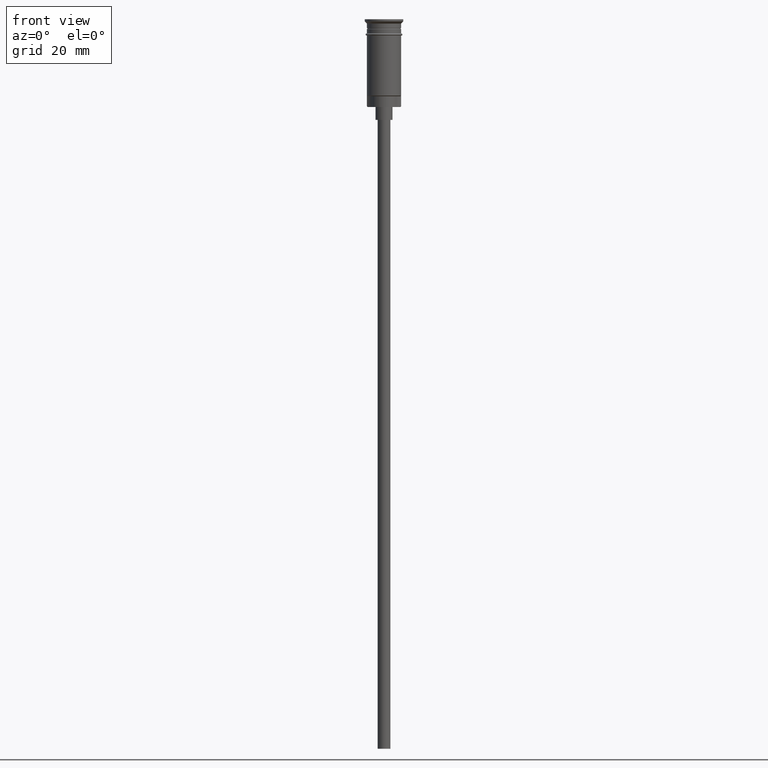
[diagram: clean part render]
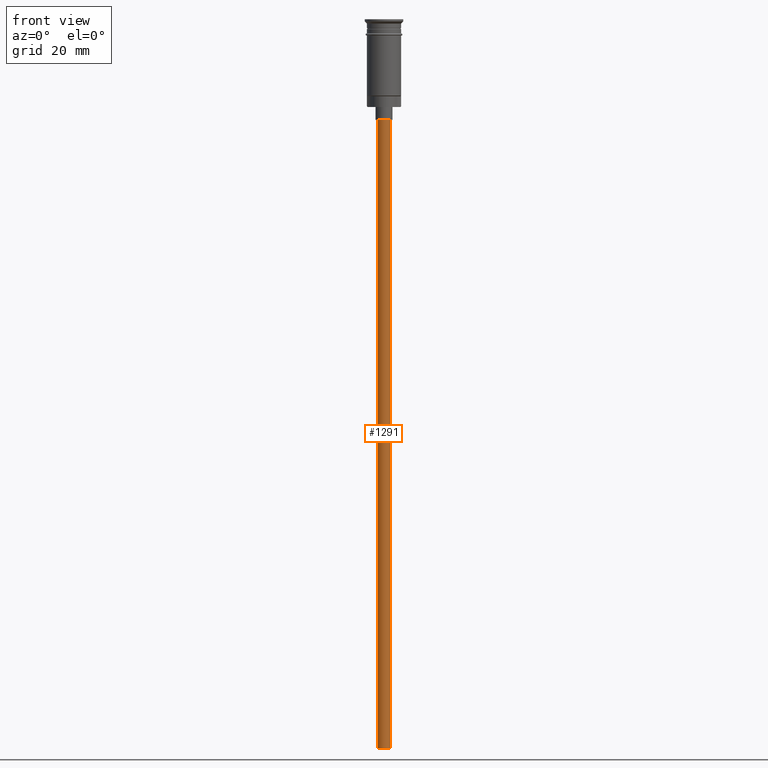
[diagram: same view with one face highlighted and labeled with its STEP entity id]
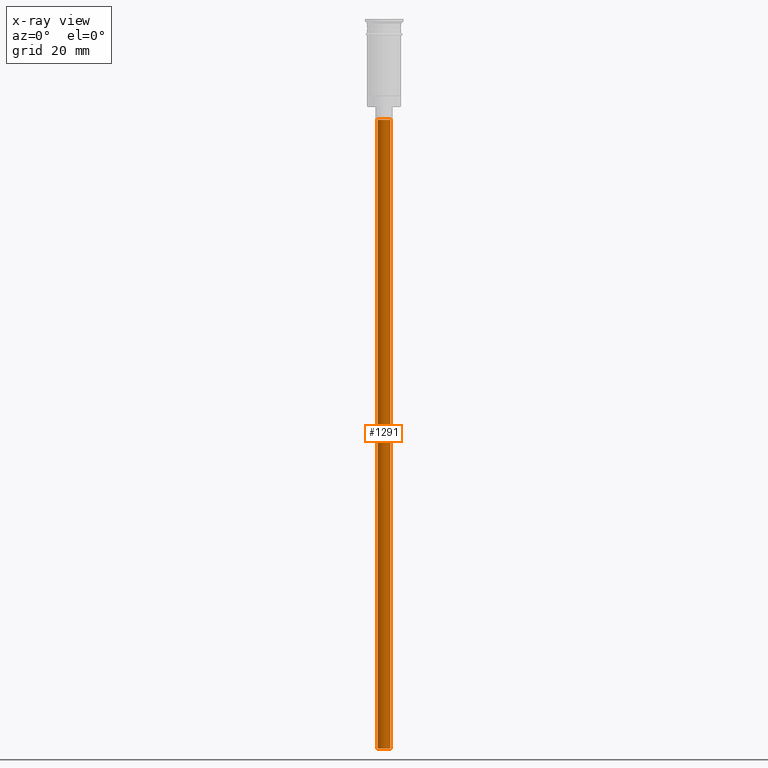
[diagram: x-ray of the same camera — body ghosted, the highlighted face saturated]
A machine part, front view. The second image highlights one B-rep face of the part: STEP entity #1291.
The next image is the same camera in x-ray: the body ghosted, the highlighted face saturated — about 0% of this face is hidden behind the body in this view.
In plain terms, the highlighted cylindrical surface (edge-blend (fillet) strip) has radius 1.5 mm, axis along (-0, -0, 1).
Its self-contained STEP definition (entity closure, byte-faithful):
#86 = CARTESIAN_POINT ( 'NONE',  ( -1.500000000000000222, 1.836970198721030181E-16, -170.4999999999999716 ) ) ;
#102 = DIRECTION ( 'NONE',  ( -1.000000000000000000, 0.000000000000000000, 0.000000000000000000 ) ) ;
#205 = ORIENTED_EDGE ( 'NONE', *, *, #1358, .F. ) ;
#211 = EDGE_CURVE ( 'NONE', #292, #383, #683, .T. ) ;
#249 = CARTESIAN_POINT ( 'NONE',  ( 0.000000000000000000, 0.000000000000000000, -170.4999999999999716 ) ) ;
#267 = VECTOR ( 'NONE', #844, 1000.000000000000000 ) ;
#288 = CARTESIAN_POINT ( 'NONE',  ( 1.500000000000000222, 0.000000000000000000, -170.4999999999999716 ) ) ;
#292 = VERTEX_POINT ( 'NONE', #1192 ) ;
#370 = DIRECTION ( 'NONE',  ( 0.000000000000000000, 0.000000000000000000, -1.000000000000000000 ) ) ;
#383 = VERTEX_POINT ( 'NONE', #775 ) ;
#387 = DIRECTION ( 'NONE',  ( 1.000000000000000000, 0.000000000000000000, 0.000000000000000000 ) ) ;
#495 = CYLINDRICAL_SURFACE ( 'NONE', #875, 1.500000000000000222 ) ;
#511 = VERTEX_POINT ( 'NONE', #973 ) ;
#575 = DIRECTION ( 'NONE',  ( -0.000000000000000000, -0.000000000000000000, 1.000000000000000000 ) ) ;
#578 = AXIS2_PLACEMENT_3D ( 'NONE', #1336, #1455, #102 ) ;
#598 = CARTESIAN_POINT ( 'NONE',  ( 1.500000000000000222, 0.000000000000000000, -170.4999999999999716 ) ) ;
#618 = EDGE_CURVE ( 'NONE', #1121, #292, #860, .T. ) ;
#634 = FACE_OUTER_BOUND ( 'NONE', #1431, .T. ) ;
#683 = CIRCLE ( 'NONE', #578, 1.500000000000000222 ) ;
#719 = LINE ( 'NONE', #86, #1448 ) ;
#775 = CARTESIAN_POINT ( 'NONE',  ( -1.500000000000000222, 1.836970198721030181E-16, -23.49999999999999645 ) ) ;
#844 = DIRECTION ( 'NONE',  ( -0.000000000000000000, -0.000000000000000000, 1.000000000000000000 ) ) ;
#860 = LINE ( 'NONE', #598, #267 ) ;
#875 = AXIS2_PLACEMENT_3D ( 'NONE', #249, #884, #387 ) ;
#884 = DIRECTION ( 'NONE',  ( -0.000000000000000000, -0.000000000000000000, 1.000000000000000000 ) ) ;
#973 = CARTESIAN_POINT ( 'NONE',  ( -1.500000000000000222, 1.836970198721030181E-16, -170.4999999999999716 ) ) ;
#1107 = ORIENTED_EDGE ( 'NONE', *, *, #1150, .F. ) ;
#1121 = VERTEX_POINT ( 'NONE', #288 ) ;
#1130 = DIRECTION ( 'NONE',  ( -1.000000000000000000, 0.000000000000000000, 0.000000000000000000 ) ) ;
#1140 = ORIENTED_EDGE ( 'NONE', *, *, #211, .T. ) ;
#1150 = EDGE_CURVE ( 'NONE', #511, #383, #719, .T. ) ;
#1171 = ORIENTED_EDGE ( 'NONE', *, *, #618, .T. ) ;
#1192 = CARTESIAN_POINT ( 'NONE',  ( 1.500000000000000222, 0.000000000000000000, -23.49999999999999645 ) ) ;
#1291 = ADVANCED_FACE ( 'NONE', ( #634 ), #495, .T. ) ;
#1336 = CARTESIAN_POINT ( 'NONE',  ( 0.000000000000000000, 0.000000000000000000, -23.49999999999999645 ) ) ;
#1358 = EDGE_CURVE ( 'NONE', #1121, #511, #1365, .T. ) ;
#1365 = CIRCLE ( 'NONE', #1577, 1.500000000000000222 ) ;
#1376 = CARTESIAN_POINT ( 'NONE',  ( 0.000000000000000000, 0.000000000000000000, -170.4999999999999716 ) ) ;
#1431 = EDGE_LOOP ( 'NONE', ( #1107, #205, #1171, #1140 ) ) ;
#1448 = VECTOR ( 'NONE', #575, 1000.000000000000000 ) ;
#1455 = DIRECTION ( 'NONE',  ( 0.000000000000000000, 0.000000000000000000, -1.000000000000000000 ) ) ;
#1577 = AXIS2_PLACEMENT_3D ( 'NONE', #1376, #370, #1130 ) ;